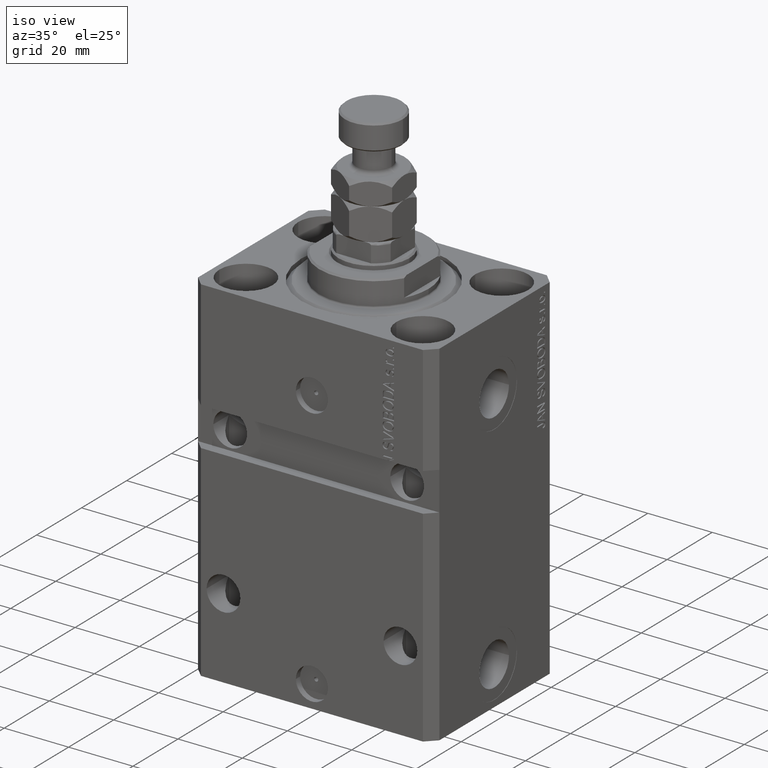
[diagram: clean part render]
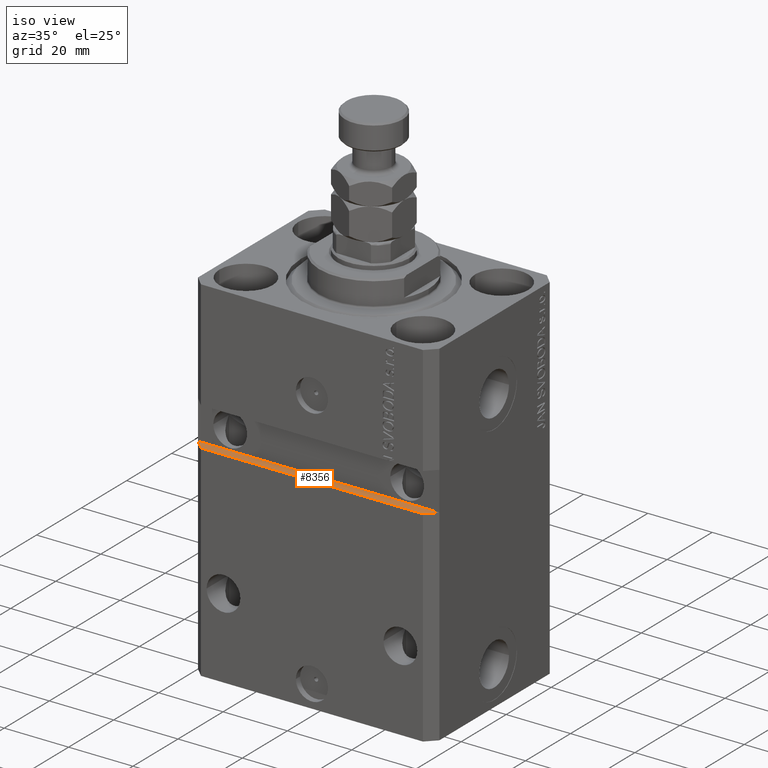
[diagram: same view with one face highlighted and labeled with its STEP entity id]
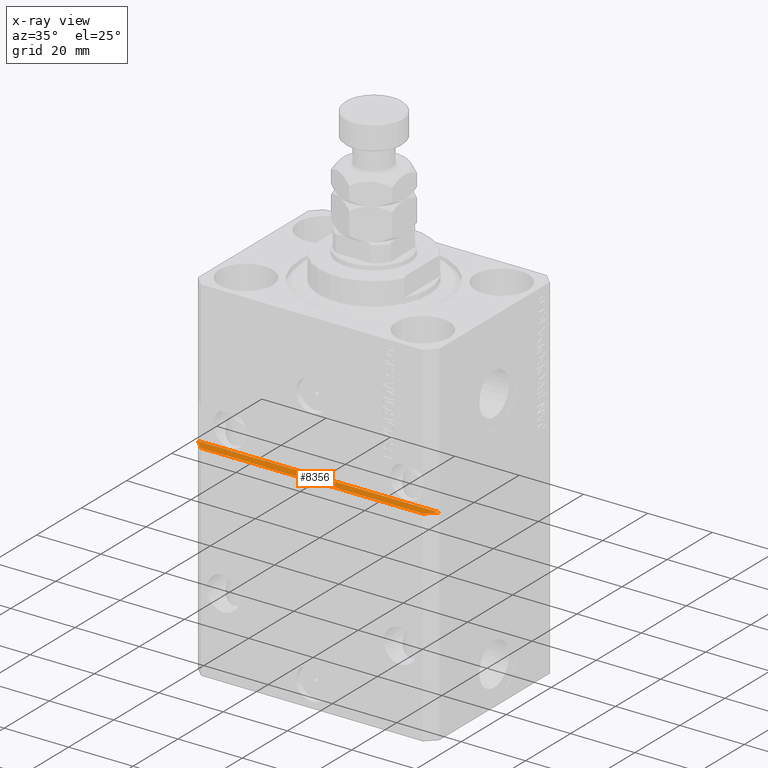
[diagram: x-ray of the same camera — body ghosted, the highlighted face saturated]
A machine part, iso view. The second image highlights one B-rep face of the part: STEP entity #8356.
The next image is the same camera in x-ray: the body ghosted, the highlighted face saturated — about 0% of this face is hidden behind the body in this view.
In plain terms, the highlighted planar face has unit normal (-0, -0, -1).
Its self-contained STEP definition (entity closure, byte-faithful):
#1588 = DIRECTION ( 'NONE',  ( 0.7071067811865483499, -0.7071067811865466846, -6.542051911182403718E-17 ) ) ;
#2171 = LINE ( 'NONE', #25209, #24881 ) ;
#3065 = VERTEX_POINT ( 'NONE', #18020 ) ;
#5083 = EDGE_LOOP ( 'NONE', ( #46918, #44399, #42256, #25021 ) ) ;
#5690 = VECTOR ( 'NONE', #32286, 1000.000000000000000 ) ;
#7197 = PLANE ( 'NONE',  #39150 ) ;
#7335 = VECTOR ( 'NONE', #16276, 1000.000000000000000 ) ;
#7365 = CARTESIAN_POINT ( 'NONE',  ( -34.49999999999998579, -27.50000000000000000, -46.00000000000000000 ) ) ;
#8356 = ADVANCED_FACE ( 'NONE', ( #36926 ), #7197, .F. ) ;
#10655 = DIRECTION ( 'NONE',  ( -9.251858538542972814E-17, -1.088096013778228463E-32, -1.000000000000000000 ) ) ;
#11370 = EDGE_CURVE ( 'NONE', #33590, #21706, #2171, .T. ) ;
#11633 = CARTESIAN_POINT ( 'NONE',  ( 37.49999999999999289, -24.49999999999999289, -46.00000000000000711 ) ) ;
#13095 = CARTESIAN_POINT ( 'NONE',  ( 34.49999999999999289, -27.49999999999999289, -46.00000000000000711 ) ) ;
#16030 = CARTESIAN_POINT ( 'NONE',  ( -37.50000000000000000, -27.50000000000000000, -46.00000000000000000 ) ) ;
#16276 = DIRECTION ( 'NONE',  ( 1.000000000000000000, 9.251858538542972814E-17, -9.251858538542972814E-17 ) ) ;
#17163 = CARTESIAN_POINT ( 'NONE',  ( -37.50000000000000000, -24.50000000000000000, -46.00000000000000000 ) ) ;
#18020 = CARTESIAN_POINT ( 'NONE',  ( -37.50000000000000000, -24.50000000000000000, -46.00000000000000000 ) ) ;
#21370 = LINE ( 'NONE', #17163, #5690 ) ;
#21706 = VERTEX_POINT ( 'NONE', #11633 ) ;
#24881 = VECTOR ( 'NONE', #28920, 1000.000000000000114 ) ;
#25021 = ORIENTED_EDGE ( 'NONE', *, *, #30159, .T. ) ;
#25209 = CARTESIAN_POINT ( 'NONE',  ( 34.49999999999999289, -27.49999999999999289, -46.00000000000000000 ) ) ;
#26488 = DIRECTION ( 'NONE',  ( -1.000000000000000000, 0.000000000000000000, 9.251858538542972814E-17 ) ) ;
#28920 = DIRECTION ( 'NONE',  ( 0.7071067811865474617, 0.7071067811865474617, -6.542051911182397555E-17 ) ) ;
#30159 = EDGE_CURVE ( 'NONE', #31347, #33590, #35110, .T. ) ;
#31347 = VERTEX_POINT ( 'NONE', #7365 ) ;
#32124 = EDGE_CURVE ( 'NONE', #3065, #21706, #21370, .T. ) ;
#32286 = DIRECTION ( 'NONE',  ( 1.000000000000000000, 9.251858538542972814E-17, -9.251858538542972814E-17 ) ) ;
#33590 = VERTEX_POINT ( 'NONE', #13095 ) ;
#35110 = LINE ( 'NONE', #16030, #7335 ) ;
#35294 = CARTESIAN_POINT ( 'NONE',  ( -37.49999999999999289, -24.50000000000000355, -46.00000000000000000 ) ) ;
#36926 = FACE_OUTER_BOUND ( 'NONE', #5083, .T. ) ;
#37420 = CARTESIAN_POINT ( 'NONE',  ( -37.50000000000000000, -24.50000000000000000, -46.00000000000000000 ) ) ;
#39150 = AXIS2_PLACEMENT_3D ( 'NONE', #37420, #10655, #26488 ) ;
#40673 = EDGE_CURVE ( 'NONE', #3065, #31347, #42976, .T. ) ;
#42256 = ORIENTED_EDGE ( 'NONE', *, *, #40673, .T. ) ;
#42976 = LINE ( 'NONE', #35294, #44826 ) ;
#44399 = ORIENTED_EDGE ( 'NONE', *, *, #32124, .F. ) ;
#44826 = VECTOR ( 'NONE', #1588, 1000.000000000000000 ) ;
#46918 = ORIENTED_EDGE ( 'NONE', *, *, #11370, .T. ) ;